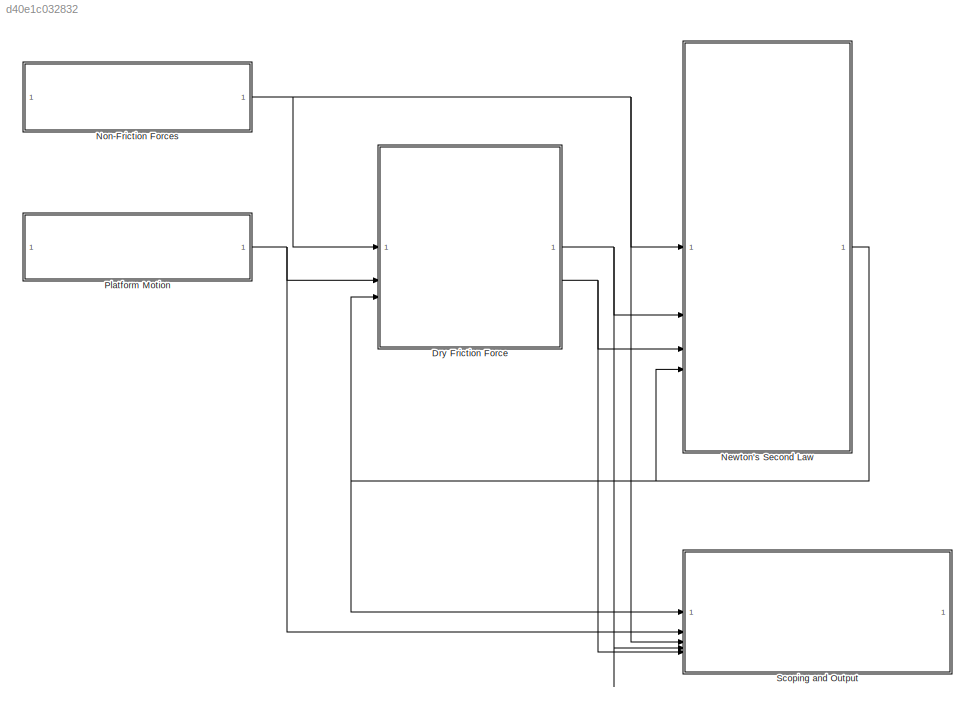
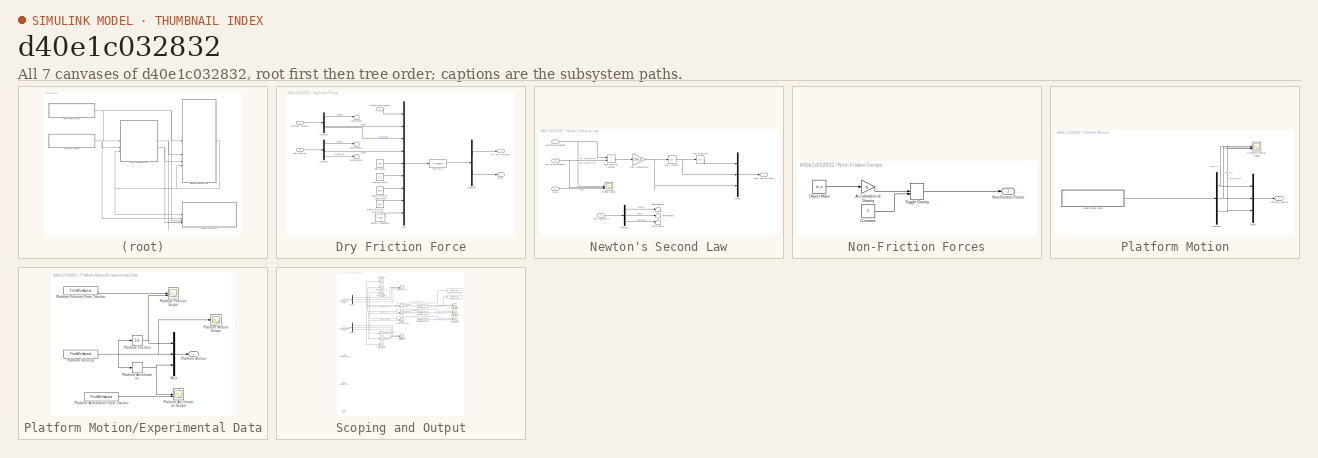
[diagram: thumbnail index - all 7 canvases of the model, root first then tree order]
MODEL slx_d40e1c032832
KIND model
CONFIG AbsTol = auto
CONFIG EnableMultiTasking = off
CONFIG FixedStep = 0.0001
CONFIG MaxStep = 1e-4
CONFIG MinStep = auto
CONFIG RelTol = 1e-7
CONFIG SampleTimeConstraint = Unconstrained
CONFIG SolverName = FixedStepAuto
CONFIG StartTime = 0.0
CONFIG StopTime = 0.3188
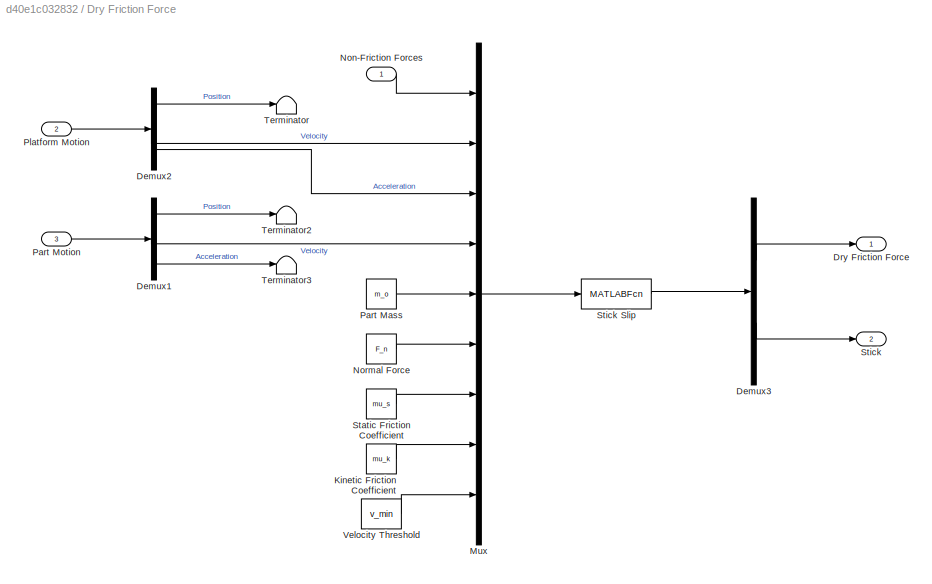
BLOCK [SubSystem] Dry Friction Force
BLOCK [Demux] Dry Friction Force/Demux1
  Outputs = 3
BLOCK [Demux] Dry Friction Force/Demux2
  Outputs = 3
BLOCK [Demux] Dry Friction Force/Demux3
  Outputs = 2
BLOCK [Outport] Dry Friction Force/Dry Friction Force
BLOCK [Constant] Dry Friction Force/Kinetic Friction Coefficient
  Value = mu_k
BLOCK [Mux] Dry Friction Force/Mux
  DisplayOption = bar
  Inputs = 9
BLOCK [Inport] Dry Friction Force/Non-Friction Forces
BLOCK [Constant] Dry Friction Force/Normal Force
  Value = F_n
BLOCK [Constant] Dry Friction Force/Part Mass
  Value = m_o
BLOCK [Inport] Dry Friction Force/Part Motion
  Port = 3
BLOCK [Inport] Dry Friction Force/Platform Motion
  Port = 2
BLOCK [Constant] Dry Friction Force/Static Friction Coefficient
  Value = mu_s
BLOCK [Outport] Dry Friction Force/Stick
  Port = 2
BLOCK [MATLABFcn] Dry Friction Force/Stick Slip
  MATLABFcn = stick_slip(u)
  OutputDimensions = 2
BLOCK [Terminator] Dry Friction Force/Terminator
BLOCK [Terminator] Dry Friction Force/Terminator2
BLOCK [Terminator] Dry Friction Force/Terminator3
BLOCK [Constant] Dry Friction Force/Velocity Threshold
  Value = v_min
BLOCK [SubSystem] Newton's Second Law
BLOCK [Demux] Newton's Second Law/Demux1
  Outputs = 3
BLOCK [Inport] Newton's Second Law/Dry Friction Force
  Port = 2
BLOCK [Scope] Newton's Second Law/Forces Scope
  Floating = off
  NumInputPorts = 3
  ScopeSpecificationString = Simulink.scopes.TimeScopeBlockCfg('CurrentConfiguration', extmgr.ConfigurationSet(extmgr.Configuration('Core','General UI',true),extmgr.Configuration('Core','Source UI',true),extmgr.Configuration('Sources','WiredSimulink',true,'DataLoggingVariableName','ScopeData5'),extmgr.Configuration('Visuals','Time Domain',true,'SerializedDisplays',{struct('MinYLimReal','-0.42298','MaxYLimReal','1.15811','YLab...<+1503ch>
BLOCK [Mux] Newton's Second Law/Mux2
  DisplayOption = bar
  Inputs = 3
BLOCK [Sum] Newton's Second Law/Net Force on Object
  IconShape = rectangular
BLOCK [Inport] Newton's Second Law/Non-Friction Forces
BLOCK [Gain] Newton's Second Law/Part Acceleration
  Gain = 1/m_o
BLOCK [Inport] Newton's Second Law/Part Motion (t)
  Port = 4
BLOCK [Outport] Newton's Second Law/Part Motion (t+dt)
BLOCK [Integrator] Newton's Second Law/Part Position
  InitialCondition = z_o_init
BLOCK [Integrator] Newton's Second Law/Part Velocity
  InitialCondition = v_o_init
BLOCK [Inport] Newton's Second Law/Stick
  Port = 3
BLOCK [Terminator] Newton's Second Law/Terminator1
BLOCK [Terminator] Newton's Second Law/Terminator2
BLOCK [Terminator] Newton's Second Law/Terminator3
BLOCK [SubSystem] Non-Friction Forces
BLOCK [Gain] Non-Friction Forces/Acceleration of Gravity
  Gain = -g
BLOCK [Constant] Non-Friction Forces/Constant
  Value = 0
BLOCK [Outport] Non-Friction Forces/Non-Friction Forces
BLOCK [Constant] Non-Friction Forces/Object Mass
  Value = m_o
BLOCK [ManualSwitch] Non-Friction Forces/Toggle Gravity
BLOCK [SubSystem] Platform Motion
BLOCK [Demux] Platform Motion/Demux1
  Outputs = 3
BLOCK [SubSystem] Platform Motion/Experimental Data
BLOCK [Mux] Platform Motion/Experimental Data/Mux
  DisplayOption = bar
  Inputs = 3
BLOCK [Derivative] Platform Motion/Experimental Data/Platform Acceleration
BLOCK [Scope] Platform Motion/Experimental Data/Platform Acceleration Scope
  Floating = off
  NumInputPorts = 2
  ScopeSpecificationString = Simulink.scopes.TimeScopeBlockCfg('CurrentConfiguration', extmgr.ConfigurationSet(extmgr.Configuration('Core','General UI',true),extmgr.Configuration('Core','Source UI',true),extmgr.Configuration('Sources','WiredSimulink',true,'DataLoggingVariableName','ScopeData5'),extmgr.Configuration('Visuals','Time Domain',true,'SerializedDisplays',{struct('MinYLimReal','-221.79555','MaxYLimReal','113.39481','...<+1498ch>
BLOCK [FromWorkspace] Platform Motion/Experimental Data/Platform Aceleration From Tracker
  SampleTime = -1
  VariableName = platform_az_ts
BLOCK [Outport] Platform Motion/Experimental Data/Platform Motion
BLOCK [Scope] Platform Motion/Experimental Data/Platform Motion Scope
  Floating = off
  NumInputPorts = 1
  ScopeSpecificationString = Simulink.scopes.TimeScopeBlockCfg('CurrentConfiguration', extmgr.ConfigurationSet(extmgr.Configuration('Core','General UI',true),extmgr.Configuration('Core','Source UI',true),extmgr.Configuration('Sources','WiredSimulink',true,'DataLoggingVariableName','ScopeData1'),extmgr.Configuration('Visuals','Time Domain',true,'SerializedDisplays',{struct('MinYLimReal','-0.4967','MaxYLimReal','0.39837','YLabe...<+1439ch>
BLOCK [Integrator] Platform Motion/Experimental Data/Platform Position
BLOCK [FromWorkspace] Platform Motion/Experimental Data/Platform Position From Tracker
  SampleTime = -1
  VariableName = platform_z_ts
BLOCK [Scope] Platform Motion/Experimental Data/Platform Position Scope
  Floating = off
  NumInputPorts = 2
  ScopeSpecificationString = Simulink.scopes.TimeScopeBlockCfg('CurrentConfiguration', extmgr.ConfigurationSet(extmgr.Configuration('Core','General UI',true),extmgr.Configuration('Core','Source UI',true),extmgr.Configuration('Sources','WiredSimulink',true,'DataLoggingVariableName','ScopeData4'),extmgr.Configuration('Visuals','Time Domain',true,'SerializedDisplays',{struct('MinYLimReal','-0.00017','MaxYLimReal','0.00006','YLab...<+1477ch>
BLOCK [FromWorkspace] Platform Motion/Experimental Data/Platform Velocity
  SampleTime = -1
  VariableName = platform_vz_ts
BLOCK [Mux] Platform Motion/Mux2
  DisplayOption = bar
  Inputs = 3
BLOCK [Outport] Platform Motion/Platform Motion
BLOCK [Scope] Platform Motion/Platform Motion Scope
  Floating = off
  NumInputPorts = 3
  ScopeSpecificationString = Simulink.scopes.TimeScopeBlockCfg('CurrentConfiguration', extmgr.ConfigurationSet(extmgr.Configuration('Core','General UI',true),extmgr.Configuration('Core','Source UI',true),extmgr.Configuration('Sources','WiredSimulink',true,'DataLoggingVariableName','ScopeData1'),extmgr.Configuration('Visuals','Time Domain',true,'SerializedDisplays',{struct('MinYLimReal','-221.79555','MaxYLimReal','113.39481','...<+1475ch>
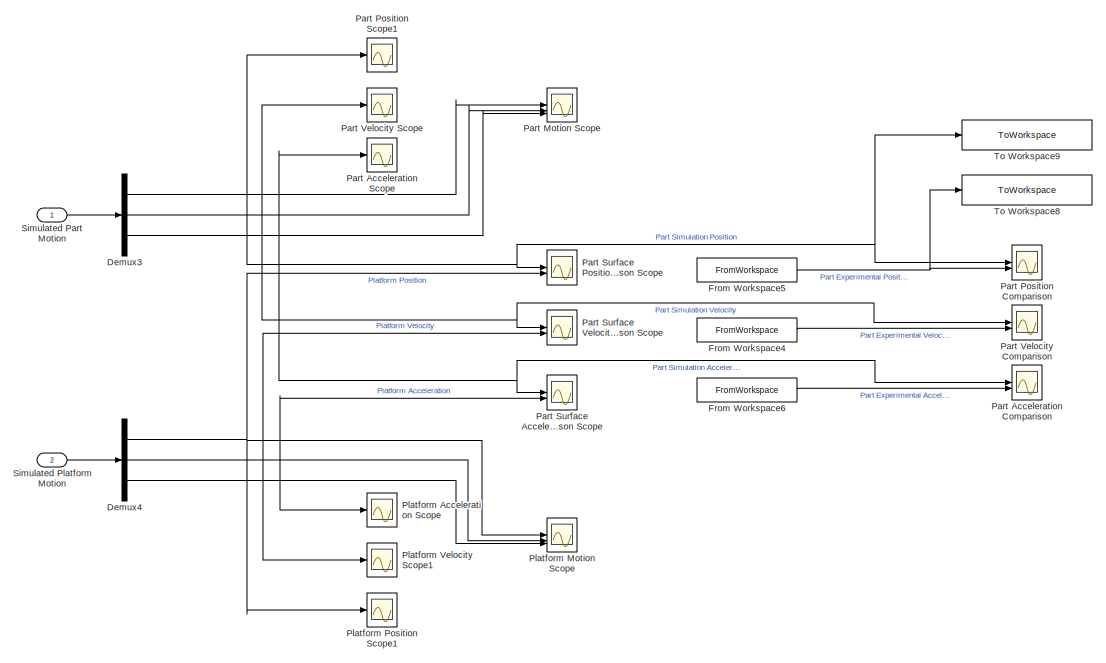
[diagram: Scoping and Output - part 1/2, full width, top band]
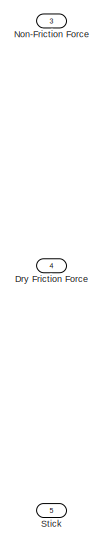
[diagram: Scoping and Output - part 2/2, bottom left region]
BLOCK [SubSystem] Scoping and Output
BLOCK [Demux] Scoping and Output/Demux3
  Outputs = 3
BLOCK [Demux] Scoping and Output/Demux4
  Outputs = 3
BLOCK [Inport] Scoping and Output/Dry Friction Force
  Port = 4
BLOCK [FromWorkspace] Scoping and Output/From Workspace4
  SampleTime = -1
  VariableName = part_vz_ts
BLOCK [FromWorkspace] Scoping and Output/From Workspace5
  SampleTime = -1
  VariableName = part_z_ts
BLOCK [FromWorkspace] Scoping and Output/From Workspace6
  SampleTime = -1
  VariableName = part_az_ts
BLOCK [Inport] Scoping and Output/Non-Friction Force
  Port = 3
BLOCK [Scope] Scoping and Output/Part Acceleration Comparison
  Floating = off
  NumInputPorts = 2
  ScopeSpecificationString = Simulink.scopes.TimeScopeBlockCfg('CurrentConfiguration', extmgr.ConfigurationSet(extmgr.Configuration('Core','General UI',true),extmgr.Configuration('Core','Source UI',true),extmgr.Configuration('Sources','WiredSimulink',true,'DataLoggingVariableName','ScopeData11'),extmgr.Configuration('Visuals','Time Domain',true,'SerializedDisplays',{struct('MinYLimReal','-154.5075','MaxYLimReal','134.8875','Y...<+1913ch>
BLOCK [Scope] Scoping and Output/Part Acceleration Scope
  Floating = off
  NumInputPorts = 1
  ScopeSpecificationString = Simulink.scopes.TimeScopeBlockCfg('CurrentConfiguration', extmgr.ConfigurationSet(extmgr.Configuration('Core','General UI',true),extmgr.Configuration('Core','Source UI',true),extmgr.Configuration('Sources','WiredSimulink',true,'DataLoggingVariableName','ScopeData12'),extmgr.Configuration('Visuals','Time Domain',true,'SerializedDisplays',{struct('MinYLimReal','-154.5075','MaxYLimReal','134.8875','Y...<+1853ch>
BLOCK [Scope] Scoping and Output/Part Motion Scope
  Floating = off
  NumInputPorts = 3
  ScopeSpecificationString = Simulink.scopes.TimeScopeBlockCfg('CurrentConfiguration', extmgr.ConfigurationSet(extmgr.Configuration('Core','General UI',true),extmgr.Configuration('Core','Source UI',true),extmgr.Configuration('Sources','WiredSimulink',true,'DataLoggingVariableName','ScopeData1'),extmgr.Configuration('Visuals','Time Domain',true,'SerializedDisplays',{struct('MinYLimReal','-0.00116','MaxYLimReal','0.00604','YLab...<+1925ch>
BLOCK [Scope] Scoping and Output/Part Position Comparison
  Floating = off
  NumInputPorts = 2
  ScopeSpecificationString = Simulink.scopes.TimeScopeBlockCfg('CurrentConfiguration', extmgr.ConfigurationSet(extmgr.Configuration('Core','General UI',true),extmgr.Configuration('Core','Source UI',true),extmgr.Configuration('Sources','WiredSimulink',true,'DataLoggingVariableName','ScopeData9'),extmgr.Configuration('Visuals','Time Domain',true,'SerializedDisplays',{struct('MinYLimReal','-0.00066','MaxYLimReal','0.0052','YLabe...<+1892ch>
BLOCK [Scope] Scoping and Output/Part Position Scope1
  Floating = off
  NumInputPorts = 1
  ScopeSpecificationString = Simulink.scopes.TimeScopeBlockCfg('CurrentConfiguration', extmgr.ConfigurationSet(extmgr.Configuration('Core','General UI',true),extmgr.Configuration('Core','Source UI',true),extmgr.Configuration('Sources','WiredSimulink',true,'DataLoggingVariableName','ScopeData13'),extmgr.Configuration('Visuals','Time Domain',true,'SerializedDisplays',{struct('MinYLimReal','-1.00000','MaxYLimReal','1.00000','YLa...<+1865ch>
BLOCK [Scope] Scoping and Output/Part Surface Acceleration Comparison Scope
  Floating = off
  NumInputPorts = 2
  ScopeSpecificationString = Simulink.scopes.TimeScopeBlockCfg('CurrentConfiguration', extmgr.ConfigurationSet(extmgr.Configuration('Core','General UI',true),extmgr.Configuration('Core','Source UI',true),extmgr.Configuration('Sources','WiredSimulink',true,'DataLoggingVariableName','ScopeData8'),extmgr.Configuration('Visuals','Time Domain',true,'SerializedDisplays',{struct('MinYLimReal','-245.25','MaxYLimReal','245.25','YLabel...<+1891ch>
BLOCK [Scope] Scoping and Output/Part Surface Position Comparison Scope
  Floating = off
  NumInputPorts = 2
  ScopeSpecificationString = Simulink.scopes.TimeScopeBlockCfg('CurrentConfiguration', extmgr.ConfigurationSet(extmgr.Configuration('Core','General UI',true),extmgr.Configuration('Core','Source UI',true),extmgr.Configuration('Sources','WiredSimulink',true,'DataLoggingVariableName','ScopeData7'),extmgr.Configuration('Visuals','Time Domain',true,'SerializedDisplays',{struct('MinYLimReal','-0.00517','MaxYLimReal','0.02908','YLab...<+1887ch>
BLOCK [Scope] Scoping and Output/Part Surface Velocity Comparison Scope
  Floating = off
  NumInputPorts = 2
  ScopeSpecificationString = Simulink.scopes.TimeScopeBlockCfg('CurrentConfiguration', extmgr.ConfigurationSet(extmgr.Configuration('Core','General UI',true),extmgr.Configuration('Core','Source UI',true),extmgr.Configuration('Sources','WiredSimulink',true,'DataLoggingVariableName','ScopeData6'),extmgr.Configuration('Visuals','Time Domain',true,'SerializedDisplays',{struct('MinYLimReal','-1.29038','MaxYLimReal','1.21309','YLab...<+1887ch>
BLOCK [Scope] Scoping and Output/Part Velocity Comparison
  Floating = off
  NumInputPorts = 2
  ScopeSpecificationString = Simulink.scopes.TimeScopeBlockCfg('CurrentConfiguration', extmgr.ConfigurationSet(extmgr.Configuration('Core','General UI',true),extmgr.Configuration('Core','Source UI',true),extmgr.Configuration('Sources','WiredSimulink',true,'DataLoggingVariableName','ScopeData10'),extmgr.Configuration('Visuals','Time Domain',true,'SerializedDisplays',{struct('MinYLimReal','-0.82709','MaxYLimReal','0.98242','YLa...<+1897ch>
BLOCK [Scope] Scoping and Output/Part Velocity Scope
  Floating = off
  NumInputPorts = 1
  ScopeSpecificationString = Simulink.scopes.TimeScopeBlockCfg('CurrentConfiguration', extmgr.ConfigurationSet(extmgr.Configuration('Core','General UI',true),extmgr.Configuration('Core','Source UI',true),extmgr.Configuration('Sources','WiredSimulink',true,'DataLoggingVariableName','ScopeData14'),extmgr.Configuration('Visuals','Time Domain',true,'SerializedDisplays',{struct('MinYLimReal','-0.00116','MaxYLimReal','0.00604','YLa...<+1868ch>
BLOCK [Scope] Scoping and Output/Platform Acceleration Scope
  Floating = off
  NumInputPorts = 1
  ScopeSpecificationString = Simulink.scopes.TimeScopeBlockCfg('CurrentConfiguration', extmgr.ConfigurationSet(extmgr.Configuration('Core','General UI',true),extmgr.Configuration('Core','Source UI',true),extmgr.Configuration('Sources','WiredSimulink',true,'DataLoggingVariableName','ScopeData2'),extmgr.Configuration('Visuals','Time Domain',true,'SerializedDisplays',{struct('MinYLimReal','-154.5075','MaxYLimReal','134.8875','YL...<+1854ch>
BLOCK [Scope] Scoping and Output/Platform Motion Scope
  Floating = off
  NumInputPorts = 3
  ScopeSpecificationString = Simulink.scopes.TimeScopeBlockCfg('CurrentConfiguration', extmgr.ConfigurationSet(extmgr.Configuration('Core','General UI',true),extmgr.Configuration('Core','Source UI',true),extmgr.Configuration('Sources','WiredSimulink',true,'DataLoggingVariableName','ScopeData5'),extmgr.Configuration('Visuals','Time Domain',true,'SerializedDisplays',{struct('MinYLimReal','-245.25','MaxYLimReal','245.25','YLabel...<+1900ch>
BLOCK [Scope] Scoping and Output/Platform Position Scope1
  Floating = off
  NumInputPorts = 1
  ScopeSpecificationString = Simulink.scopes.TimeScopeBlockCfg('CurrentConfiguration', extmgr.ConfigurationSet(extmgr.Configuration('Core','General UI',true),extmgr.Configuration('Core','Source UI',true),extmgr.Configuration('Sources','WiredSimulink',true,'DataLoggingVariableName','ScopeData3'),extmgr.Configuration('Visuals','Time Domain',true,'SerializedDisplays',{struct('MinYLimReal','-0.00517','MaxYLimReal','0.02908','YLab...<+1869ch>
BLOCK [Scope] Scoping and Output/Platform Velocity Scope1
  Floating = off
  NumInputPorts = 1
  ScopeSpecificationString = Simulink.scopes.TimeScopeBlockCfg('CurrentConfiguration', extmgr.ConfigurationSet(extmgr.Configuration('Core','General UI',true),extmgr.Configuration('Core','Source UI',true),extmgr.Configuration('Sources','WiredSimulink',true,'DataLoggingVariableName','ScopeData4'),extmgr.Configuration('Visuals','Time Domain',true,'SerializedDisplays',{struct('MinYLimReal','-0.00116','MaxYLimReal','0.00604','YLab...<+1851ch>
BLOCK [Inport] Scoping and Output/Simulated Part Motion
BLOCK [Inport] Scoping and Output/Simulated Platform Motion
  Port = 2
BLOCK [Inport] Scoping and Output/Stick
  Port = 5
BLOCK [ToWorkspace] Scoping and Output/To Workspace8
  FixptAsFi = on
  MaxDataPoints = inf
  SampleTime = -1
  SaveFormat = Timeseries
  VariableName = experimental_part_position
BLOCK [ToWorkspace] Scoping and Output/To Workspace9
  FixptAsFi = on
  MaxDataPoints = inf
  SampleTime = -1
  SaveFormat = Timeseries
  VariableName = part_position
LINE Dry Friction Force/Demux1:1 -> Dry Friction Force/Terminator2:1
LINE Dry Friction Force/Demux1:2 -> Dry Friction Force/Mux:4
LINE Dry Friction Force/Demux1:3 -> Dry Friction Force/Terminator3:1
LINE Dry Friction Force/Demux2:1 -> Dry Friction Force/Terminator:1
LINE Dry Friction Force/Demux2:2 -> Dry Friction Force/Mux:2
LINE Dry Friction Force/Demux2:3 -> Dry Friction Force/Mux:3
LINE Dry Friction Force/Demux3:1 -> Dry Friction Force/Dry Friction Force:1
LINE Dry Friction Force/Demux3:2 -> Dry Friction Force/Stick:1
LINE Dry Friction Force/Kinetic Friction Coefficient:1 -> Dry Friction Force/Mux:8
LINE Dry Friction Force/Mux:1 -> Dry Friction Force/Stick Slip:1
LINE Dry Friction Force/Non-Friction Forces:1 -> Dry Friction Force/Mux:1
LINE Dry Friction Force/Normal Force:1 -> Dry Friction Force/Mux:6
LINE Dry Friction Force/Part Mass:1 -> Dry Friction Force/Mux:5
LINE Dry Friction Force/Part Motion:1 -> Dry Friction Force/Demux1:1
LINE Dry Friction Force/Platform Motion:1 -> Dry Friction Force/Demux2:1
LINE Dry Friction Force/Static Friction Coefficient:1 -> Dry Friction Force/Mux:7
LINE Dry Friction Force/Stick Slip:1 -> Dry Friction Force/Demux3:1
LINE Dry Friction Force/Velocity Threshold:1 -> Dry Friction Force/Mux:9
NET Dry Friction Force:1 -> Newton's Second Law:2, Scoping and Output:4
NET Dry Friction Force:2 -> Newton's Second Law:3, Scoping and Output:5
LINE Newton's Second Law/Demux1:1 -> Newton's Second Law/Terminator2:1
LINE Newton's Second Law/Demux1:2 -> Newton's Second Law/Terminator1:1
LINE Newton's Second Law/Demux1:3 -> Newton's Second Law/Terminator3:1
NET Newton's Second Law/Dry Friction Force:1 -> Newton's Second Law/Forces Scope:2, Newton's Second Law/Net Force on Object:2
LINE Newton's Second Law/Mux2:1 -> Newton's Second Law/Part Motion (t+dt):1
LINE Newton's Second Law/Net Force on Object:1 -> Newton's Second Law/Part Acceleration:1
NET Newton's Second Law/Non-Friction Forces:1 -> Newton's Second Law/Forces Scope:1, Newton's Second Law/Net Force on Object:1
NET Newton's Second Law/Part Acceleration:1 -> Newton's Second Law/Mux2:3, Newton's Second Law/Part Velocity:1
LINE Newton's Second Law/Part Motion (t):1 -> Newton's Second Law/Demux1:1
LINE Newton's Second Law/Part Position:1 -> Newton's Second Law/Mux2:1
NET Newton's Second Law/Part Velocity:1 -> Newton's Second Law/Mux2:2, Newton's Second Law/Part Position:1
LINE Newton's Second Law/Stick:1 -> Newton's Second Law/Forces Scope:3
NET Newton's Second Law:1 -> Dry Friction Force:3, Newton's Second Law:4, Scoping and Output:1
LINE Non-Friction Forces/Acceleration of Gravity:1 -> Non-Friction Forces/Toggle Gravity:1
LINE Non-Friction Forces/Constant:1 -> Non-Friction Forces/Toggle Gravity:2
LINE Non-Friction Forces/Object Mass:1 -> Non-Friction Forces/Acceleration of Gravity:1
LINE Non-Friction Forces/Toggle Gravity:1 -> Non-Friction Forces/Non-Friction Forces:1
NET Non-Friction Forces:1 -> Dry Friction Force:1, Newton's Second Law:1, Scoping and Output:3
NET Platform Motion/Demux1:1 -> Platform Motion/Mux2:1, Platform Motion/Platform Motion Scope:1
NET Platform Motion/Demux1:2 -> Platform Motion/Mux2:2, Platform Motion/Platform Motion Scope:2
NET Platform Motion/Demux1:3 -> Platform Motion/Mux2:3, Platform Motion/Platform Motion Scope:3
LINE Platform Motion/Experimental Data/Mux:1 -> Platform Motion/Experimental Data/Platform Motion:1
NET Platform Motion/Experimental Data/Platform Acceleration:1 -> Platform Motion/Experimental Data/Mux:3, Platform Motion/Experimental Data/Platform Acceleration Scope:1
LINE Platform Motion/Experimental Data/Platform Aceleration From Tracker:1 -> Platform Motion/Experimental Data/Platform Acceleration Scope:2
LINE Platform Motion/Experimental Data/Platform Position From Tracker:1 -> Platform Motion/Experimental Data/Platform Position Scope:1
NET Platform Motion/Experimental Data/Platform Position:1 -> Platform Motion/Experimental Data/Mux:1, Platform Motion/Experimental Data/Platform Position Scope:2
NET Platform Motion/Experimental Data/Platform Velocity:1 -> Platform Motion/Experimental Data/Mux:2, Platform Motion/Experimental Data/Platform Acceleration:1, Platform Motion/Experimental Data/Platform Motion Scope:1, Platform Motion/Experimental Data/Platform Position:1
LINE Platform Motion/Experimental Data:1 -> Platform Motion/Demux1:1
LINE Platform Motion/Mux2:1 -> Platform Motion/Platform Motion:1
NET Platform Motion:1 -> Dry Friction Force:2, Scoping and Output:2
NET Scoping and Output/Demux3:1 -> Scoping and Output/Part Motion Scope:1, Scoping and Output/Part Position Comparison:1, Scoping and Output/Part Position Scope1:1, Scoping and Output/Part Surface Position Comparison Scope:1, Scoping and Output/To Workspace9:1
NET Scoping and Output/Demux3:2 -> Scoping and Output/Part Motion Scope:2, Scoping and Output/Part Surface Velocity Comparison Scope:1, Scoping and Output/Part Velocity Comparison:1, Scoping and Output/Part Velocity Scope:1
NET Scoping and Output/Demux3:3 -> Scoping and Output/Part Acceleration Comparison:1, Scoping and Output/Part Acceleration Scope:1, Scoping and Output/Part Motion Scope:3, Scoping and Output/Part Surface Acceleration Comparison Scope:1
NET Scoping and Output/Demux4:1 -> Scoping and Output/Part Surface Position Comparison Scope:2, Scoping and Output/Platform Motion Scope:1, Scoping and Output/Platform Position Scope1:1
NET Scoping and Output/Demux4:2 -> Scoping and Output/Part Surface Velocity Comparison Scope:2, Scoping and Output/Platform Motion Scope:2, Scoping and Output/Platform Velocity Scope1:1
NET Scoping and Output/Demux4:3 -> Scoping and Output/Part Surface Acceleration Comparison Scope:2, Scoping and Output/Platform Acceleration Scope:1, Scoping and Output/Platform Motion Scope:3
LINE Scoping and Output/From Workspace4:1 -> Scoping and Output/Part Velocity Comparison:2
NET Scoping and Output/From Workspace5:1 -> Scoping and Output/Part Position Comparison:2, Scoping and Output/To Workspace8:1
LINE Scoping and Output/From Workspace6:1 -> Scoping and Output/Part Acceleration Comparison:2
LINE Scoping and Output/Simulated Part Motion:1 -> Scoping and Output/Demux3:1
LINE Scoping and Output/Simulated Platform Motion:1 -> Scoping and Output/Demux4:1
note: NET lines group one-source signal fan-out (src -> all destinations, sorted); 1:1 wires keep LINE
